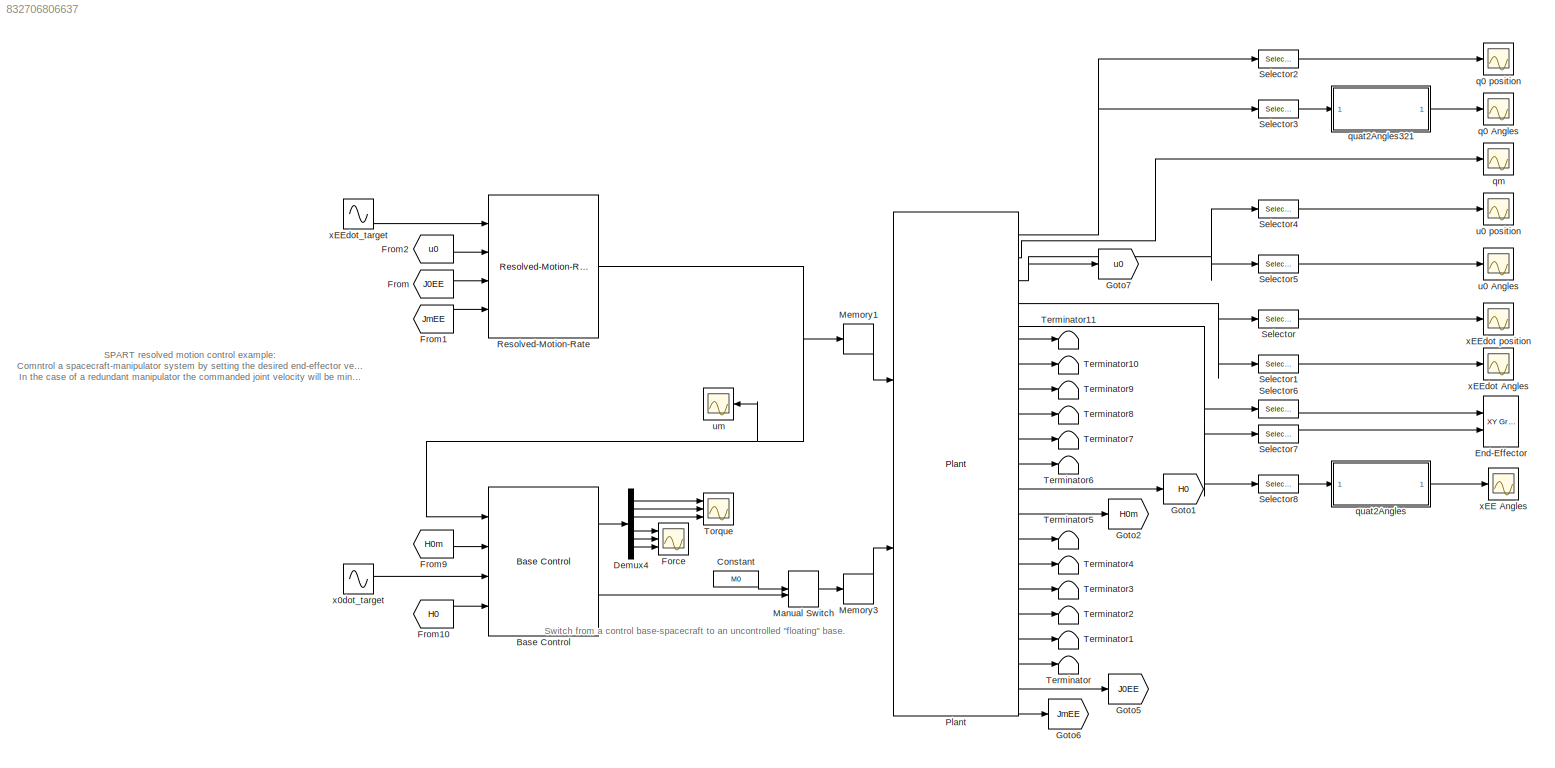
MODEL slx_832706806637
KIND model
CONFIG AbsTol = 1e-3
CONFIG EnableMultiTasking = on
CONFIG FixedStep = auto
CONFIG InitFcn = ResolvedMotion_Example_Init
CONFIG MaxStep = 1e-2
CONFIG MinStep = auto
CONFIG RelTol = 1e-3
CONFIG SampleTimeConstraint = Unconstrained
CONFIG Solver = ode45
CONFIG SolverName = ode45
CONFIG StartTime = 0.0
CONFIG StopTime = 10.0
BLOCK [Reference] Base Control  REF=SPART_Lib/Control/Base Control
  Ports = [4, 2]
  SourceBlock = SPART_Lib/Control/Base Control
  SourceType = SubSystem
BLOCK [Constant] Constant
  Value = M0
BLOCK [Demux] Demux4
  DisplayOption = bar
  Outputs = 6
  Ports = [1, 6]
BLOCK [Reference] End-Effector  REF=simulink/Sinks/XY Graph
  Ports = [2]
  SourceBlock = simulink/Sinks/XY Graph
  SourceType = XY scope.
BLOCK [Scope] Force
  NumInputPorts = 3
  Ports = [3]
  ScopeSpecificationString = C++SS(StrPVP('Location','[1, 72, 1441, 895]'),StrPVP('Open','off'),MxPVP('AxesTitles',24,'struct(''axes1'',''%<SignalLabel>'',''axes2'',''%<SignalLabel>'',''axes3'',''%<SignalLabel>'')'),MxPVP('ScopeGraphics',28,'struct(''FigureColor'',''[0.5 0.5 0.5]'',''AxesColor'',''[0 0 0]'',''AxesTickColor'',''[1 1 1]'',''LineColors'',''[1 1 0;1 0 1;0 1 1;1 0 0;0 1 0;0 0 1]'',''LineStyles'',''-|-|-|-|-|-'',''...<+301ch>
BLOCK [From] From
  GotoTag = J0EE
BLOCK [From] From1
  GotoTag = JmEE
BLOCK [From] From10
  GotoTag = H0
BLOCK [From] From2
  GotoTag = u0
BLOCK [From] From9
  GotoTag = H0m
BLOCK [Goto] Goto1
  GotoTag = H0
BLOCK [Goto] Goto2
  GotoTag = H0m
BLOCK [Goto] Goto5
  GotoTag = J0EE
BLOCK [Goto] Goto6
  GotoTag = JmEE
BLOCK [Goto] Goto7
  GotoTag = u0
BLOCK [ManualSwitch] Manual Switch
  CurrentSetting = 0
BLOCK [Memory] Memory1
  InheritSampleTime = on
  X0 = um0
BLOCK [Memory] Memory3
  InheritSampleTime = on
  X0 = M0
BLOCK [Reference] Plant  REF=SPART_Lib/Plant
  Ports = [2, 21]
  SourceBlock = SPART_Lib/Plant
  SourceType = SubSystem
BLOCK [Reference] Resolved-Motion-Rate   REF=SPART_Lib/Control/Resolved-Motion-Rate

  Ports = [4, 1]
  SourceBlock = SPART_Lib/Control/Resolved-Motion-Rate
  SourceType = SubSystem
BLOCK [Selector] Selector
  IndexOptions = Index vector (dialog)
  Indices = [4:6]
  InputPortWidth = 6
  OutputSizes = 1
  Ports = [1, 1]
BLOCK [Selector] Selector1
  IndexOptions = Index vector (dialog)
  Indices = [1:3]
  InputPortWidth = 6
  OutputSizes = 1
  Ports = [1, 1]
BLOCK [Selector] Selector2
  IndexOptions = Index vector (dialog)
  Indices = [5:7]
  InputPortWidth = 7
  OutputSizes = 1
  Ports = [1, 1]
BLOCK [Selector] Selector3
  IndexOptions = Index vector (dialog)
  Indices = [1:4]
  InputPortWidth = 7
  OutputSizes = 1
  Ports = [1, 1]
BLOCK [Selector] Selector4
  IndexOptions = Index vector (dialog)
  Indices = [4:6]
  InputPortWidth = 6
  OutputSizes = 1
  Ports = [1, 1]
BLOCK [Selector] Selector5
  IndexOptions = Index vector (dialog)
  Indices = [1:3]
  InputPortWidth = 6
  OutputSizes = 1
  Ports = [1, 1]
BLOCK [Selector] Selector6
  IndexOptions = Index vector (dialog)
  Indices = [5]
  InputPortWidth = 7
  OutputSizes = 1
  Ports = [1, 1]
BLOCK [Selector] Selector7
  IndexOptions = Index vector (dialog)
  Indices = [6]
  InputPortWidth = 7
  OutputSizes = 1
  Ports = [1, 1]
BLOCK [Selector] Selector8
  IndexOptions = Index vector (dialog)
  Indices = [1:4]
  InputPortWidth = 7
  OutputSizes = 1
  Ports = [1, 1]
BLOCK [Terminator] Terminator
BLOCK [Terminator] Terminator1
BLOCK [Terminator] Terminator10
BLOCK [Terminator] Terminator11
BLOCK [Terminator] Terminator2
BLOCK [Terminator] Terminator3
BLOCK [Terminator] Terminator4
BLOCK [Terminator] Terminator5
BLOCK [Terminator] Terminator6
BLOCK [Terminator] Terminator7
BLOCK [Terminator] Terminator8
BLOCK [Terminator] Terminator9
BLOCK [Scope] Torque
  NumInputPorts = 3
  Ports = [3]
  ScopeSpecificationString = C++SS(StrPVP('Location','[1, 72, 1441, 895]'),StrPVP('Open','off'),StrPVP('ZoomMode','yonly'),MxPVP('AxesTitles',24,'struct(''axes1'',''%<SignalLabel>'',''axes2'',''%<SignalLabel>'',''axes3'',''%<SignalLabel>'')'),MxPVP('ScopeGraphics',28,'struct(''FigureColor'',''[0.5 0.5 0.5]'',''AxesColor'',''[0 0 0]'',''AxesTickColor'',''[1 1 1]'',''LineColors'',''[1 1 0;1 0 1;0 1 1;1 0 0;0 1 0;0 0 1]'',''Line...<+329ch>
BLOCK [Scope] q0 Angles
  NumInputPorts = 1
  Ports = [1]
  ScopeSpecificationString = Simulink.scopes.TimeScopeBlockCfg('CurrentConfiguration', extmgr.ConfigurationSet(extmgr.Configuration('Core','General UI',true),extmgr.Configuration('Core','Source UI',true),extmgr.Configuration('Sources','WiredSimulink',true,'DataLoggingVariableName','ScopeData2','DataLoggingLimitDataPoints',true,'DataLoggingSaveFormat','Array','DataLoggingDecimation','1','DataLoggingDecimateData',true),extmgr.C...<+1735ch>
BLOCK [Scope] q0 position 
  NumInputPorts = 1
  Ports = [1]
  ScopeSpecificationString = Simulink.scopes.TimeScopeBlockCfg('CurrentConfiguration', extmgr.ConfigurationSet(extmgr.Configuration('Core','General UI',true),extmgr.Configuration('Core','Source UI',true),extmgr.Configuration('Sources','WiredSimulink',true,'DataLoggingVariableName','ScopeData3','DataLoggingLimitDataPoints',true,'DataLoggingSaveFormat','Array','DataLoggingDecimation','1','DataLoggingDecimateData',true),extmgr.C...<+1728ch>
BLOCK [Scope] qm
  NumInputPorts = 1
  Ports = [1]
  ScopeSpecificationString = Simulink.scopes.TimeScopeBlockCfg('CurrentConfiguration', extmgr.ConfigurationSet(extmgr.Configuration('Core','General UI',true),extmgr.Configuration('Core','Source UI',true),extmgr.Configuration('Sources','WiredSimulink',true,'DataLoggingVariableName','ScopeData4','DataLoggingLimitDataPoints',true,'DataLoggingSaveFormat','Array','DataLoggingDecimation','1','DataLoggingDecimateData',true),extmgr.C...<+1726ch>
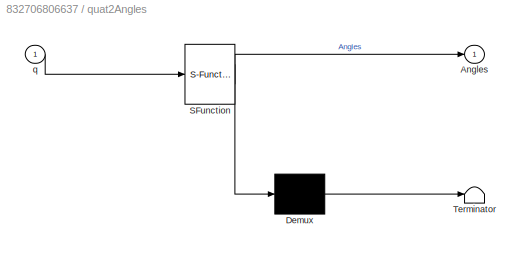
BLOCK [SubSystem] quat2Angles
  ErrorFcn = Stateflow.Translate.translate
  PermitHierarchicalResolution = ExplicitOnly
  Ports = [1, 1]
  RequestExecContextInheritance = off
  SFBlockType = MATLAB Function
  TreatAsAtomicUnit = on
  Variant = off
BLOCK [Demux] quat2Angles/ Demux 
  Outputs = 1
  Ports = [1, 1]
BLOCK [S-Function] quat2Angles/ SFunction 
  EnableBusSupport = on
  FunctionName = sf_sfun
  PortCounts = [1 2]
  Ports = [1, 2]
  SFcnIsStateOwnerBlock = off
  SFunctionDeploymentMode = off
  Tag = Stateflow S-Function ResolvedMotion_Example 1
BLOCK [Terminator] quat2Angles/ Terminator 
BLOCK [Outport] quat2Angles/Angles
  IconDisplay = Port number
BLOCK [Inport] quat2Angles/q
  IconDisplay = Port number
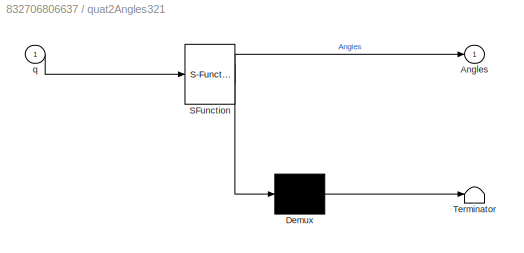
BLOCK [SubSystem] quat2Angles321
  ErrorFcn = Stateflow.Translate.translate
  PermitHierarchicalResolution = ExplicitOnly
  Ports = [1, 1]
  RequestExecContextInheritance = off
  SFBlockType = MATLAB Function
  TreatAsAtomicUnit = on
  Variant = off
BLOCK [Demux] quat2Angles321/ Demux 
  Outputs = 1
  Ports = [1, 1]
BLOCK [S-Function] quat2Angles321/ SFunction 
  EnableBusSupport = on
  FunctionName = sf_sfun
  PortCounts = [1 2]
  Ports = [1, 2]
  SFcnIsStateOwnerBlock = off
  SFunctionDeploymentMode = off
  Tag = Stateflow S-Function ResolvedMotion_Example 2
BLOCK [Terminator] quat2Angles321/ Terminator 
BLOCK [Outport] quat2Angles321/Angles
  IconDisplay = Port number
BLOCK [Inport] quat2Angles321/q
  IconDisplay = Port number
BLOCK [Scope] u0 Angles
  NumInputPorts = 1
  Ports = [1]
  ScopeSpecificationString = Simulink.scopes.TimeScopeBlockCfg('CurrentConfiguration', extmgr.ConfigurationSet(extmgr.Configuration('Core','General UI',true),extmgr.Configuration('Core','Source UI',true),extmgr.Configuration('Sources','WiredSimulink',true,'DataLoggingVariableName','ScopeData5','DataLoggingLimitDataPoints',true,'DataLoggingSaveFormat','Array','DataLoggingDecimation','1','DataLoggingDecimateData',true),extmgr.C...<+1720ch>
BLOCK [Scope] u0 position
  NumInputPorts = 1
  Ports = [1]
  ScopeSpecificationString = Simulink.scopes.TimeScopeBlockCfg('CurrentConfiguration', extmgr.ConfigurationSet(extmgr.Configuration('Core','General UI',true),extmgr.Configuration('Core','Source UI',true),extmgr.Configuration('Sources','WiredSimulink',true,'DataLoggingVariableName','ScopeData6','DataLoggingLimitDataPoints',true,'DataLoggingSaveFormat','Array','DataLoggingDecimation','1','DataLoggingDecimateData',true),extmgr.C...<+1720ch>
BLOCK [Scope] um
  NumInputPorts = 1
  Ports = [1]
  ScopeSpecificationString = Simulink.scopes.TimeScopeBlockCfg('CurrentConfiguration', extmgr.ConfigurationSet(extmgr.Configuration('Core','General UI',true),extmgr.Configuration('Core','Source UI',true),extmgr.Configuration('Sources','WiredSimulink',true,'DataLoggingVariableName','ScopeData13','DataLoggingLimitDataPoints',true,'DataLoggingSaveFormat','Array','DataLoggingDecimation','1','DataLoggingDecimateData',true),extmgr....<+1733ch>
BLOCK [Sin] x0dot_target
  Amplitude = [0;0;0.05;0;0;0]
  Frequency = pi/4
  Ports = [0, 1]
  SampleTime = 0
BLOCK [Scope] xEE Angles
  NumInputPorts = 1
  Ports = [1]
  ScopeSpecificationString = Simulink.scopes.TimeScopeBlockCfg('CurrentConfiguration', extmgr.ConfigurationSet(extmgr.Configuration('Core','General UI',true),extmgr.Configuration('Core','Source UI',true),extmgr.Configuration('Sources','WiredSimulink',true,'DataLoggingVariableName','ScopeData1'),extmgr.Configuration('Visuals','Time Domain',true,'SerializedDisplays',{struct('MinYLimReal','-0.01598','MaxYLimReal','0.14381','YLab...<+1476ch>
BLOCK [Scope] xEEdot Angles
  NumInputPorts = 1
  Ports = [1]
  ScopeSpecificationString = Simulink.scopes.TimeScopeBlockCfg('CurrentConfiguration', extmgr.ConfigurationSet(extmgr.Configuration('Core','General UI',true),extmgr.Configuration('Core','Source UI',true),extmgr.Configuration('Sources','WiredSimulink',true,'DataLoggingVariableName','ScopeData1','DataLoggingLimitDataPoints',true,'DataLoggingSaveFormat','Array','DataLoggingDecimation','1','DataLoggingDecimateData',true),extmgr.C...<+1747ch>
BLOCK [Scope] xEEdot position
  NumInputPorts = 1
  Ports = [1]
  ScopeSpecificationString = Simulink.scopes.TimeScopeBlockCfg('CurrentConfiguration', extmgr.ConfigurationSet(extmgr.Configuration('Core','General UI',true),extmgr.Configuration('Core','Source UI',true),extmgr.Configuration('Sources','WiredSimulink',true,'DataLoggingLimitDataPoints',true,'DataLoggingSaveFormat','Array','DataLoggingDecimation','1','DataLoggingDecimateData',true),extmgr.Configuration('Visuals','Time Domain',tr...<+1724ch>
BLOCK [Sin] xEEdot_target
  Amplitude = [0;0;0.1;0.05;0.05;0]
  Frequency = pi/2
  Phase = [0;0;0;0;pi/2;0]
  Ports = [0, 1]
  SampleTime = 0
ANNOTATION (root): SPART resolved motion control example: Comntrol a spacecraft-manipulator system by setting the desired end-effector velocity and base velocity. In the case of a redundant manipulator the commanded joint velocity will be minimized.
ANNOTATION (root): Switch from a control base-spacecraft to an uncontrolled "floating" base.
LINE Base Control:1 -> Demux4:1
LINE Base Control:2 -> Manual Switch:2
LINE Constant:1 -> Manual Switch:1
LINE Demux4:1 -> Torque:1
LINE Demux4:2 -> Torque:2
LINE Demux4:3 -> Torque:3
LINE Demux4:4 -> Force:1
LINE Demux4:5 -> Force:2
LINE Demux4:6 -> Force:3
LINE From10:1 -> Base Control:4
LINE From1:1 -> Resolved-Motion-Rate :4
LINE From2:1 -> Resolved-Motion-Rate :2
LINE From9:1 -> Base Control:2
LINE From:1 -> Resolved-Motion-Rate :3
LINE Manual Switch:1 -> Memory3:1
LINE Memory1:1 -> Plant:1
LINE Memory3:1 -> Plant:2
NET Plant:1 -> Selector2:1, Selector3:1
LINE Plant:10 -> Terminator7:1
LINE Plant:11 -> Terminator6:1
LINE Plant:12 -> Goto1:1
LINE Plant:13 -> Goto2:1
LINE Plant:14 -> Terminator5:1
LINE Plant:15 -> Terminator4:1
LINE Plant:16 -> Terminator3:1
LINE Plant:17 -> Terminator2:1
LINE Plant:18 -> Terminator1:1
LINE Plant:19 -> Terminator:1
LINE Plant:2 -> qm:1
LINE Plant:20 -> Goto5:1
LINE Plant:21 -> Goto6:1
NET Plant:3 -> Goto7:1, Selector4:1, Selector5:1
NET Plant:4 -> Selector1:1, Selector:1
NET Plant:5 -> Selector6:1, Selector7:1, Selector8:1
LINE Plant:6 -> Terminator11:1
LINE Plant:7 -> Terminator10:1
LINE Plant:8 -> Terminator9:1
LINE Plant:9 -> Terminator8:1
NET Resolved-Motion-Rate :1 -> Base Control:1, Memory1:1, um:1
LINE Selector1:1 -> xEEdot Angles:1
LINE Selector2:1 -> q0 position :1
LINE Selector3:1 -> quat2Angles321:1
LINE Selector4:1 -> u0 position:1
LINE Selector5:1 -> u0 Angles:1
LINE Selector6:1 -> End-Effector:1
LINE Selector7:1 -> End-Effector:2
LINE Selector8:1 -> quat2Angles:1
LINE Selector:1 -> xEEdot position:1
LINE quat2Angles321:1 -> q0 Angles:1
LINE quat2Angles:1 -> xEE Angles:1
LINE x0dot_target:1 -> Base Control:3
LINE xEEdot_target:1 -> Resolved-Motion-Rate :1
note: NET lines group one-source signal fan-out (src -> all destinations, sorted); 1:1 wires keep LINE
CHART quat2Angles states=1 transitions=1
  STATE_LABEL 'eML_blk_kernel()'
  STATE_LABEL 'SCRIPT:\nfunction Angles = quat2Angles321(q)\n%Convert the quaternion to Euler angles (321 sequence), x-phi, y-theta, z-psi.\n%\n%Uses the functions under the Utilities folder\n\n\nAngles = quat_Angles321(q);\n\nend'
CHART quat2Angles321 states=1 transitions=1
  STATE_LABEL 'eML_blk_kernel()'
  STATE_LABEL 'SCRIPT:\nfunction Angles = quat2Angles321(q)\n%Convert the quaternion to Euler angles (321 sequence), x-phi, y-theta, z-psi.\n%\n%Uses the functions under the Utilities folder\n\n\nAngles = quat_Angles321(q);\n\nend'
